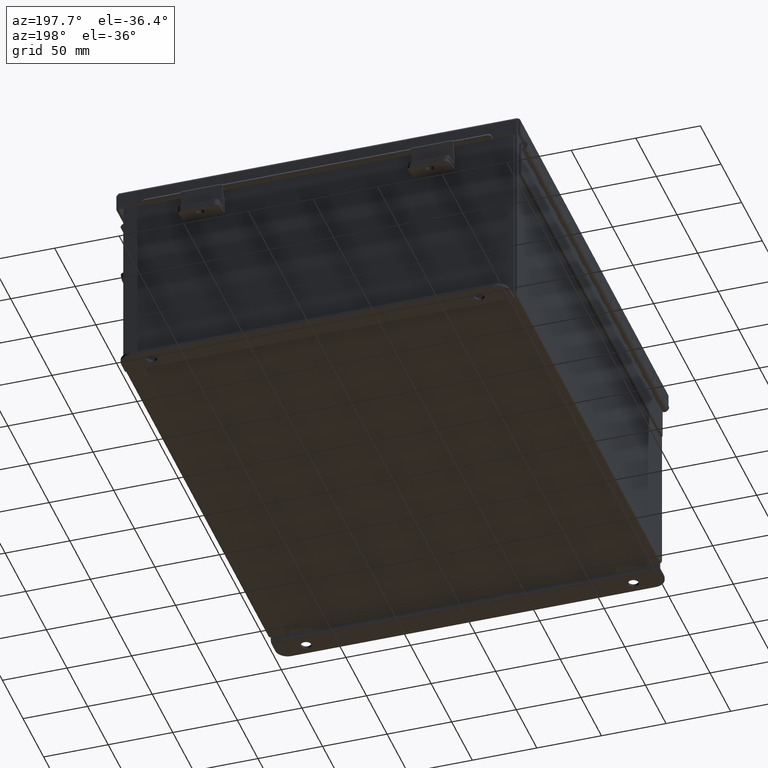
[diagram: clean part render]
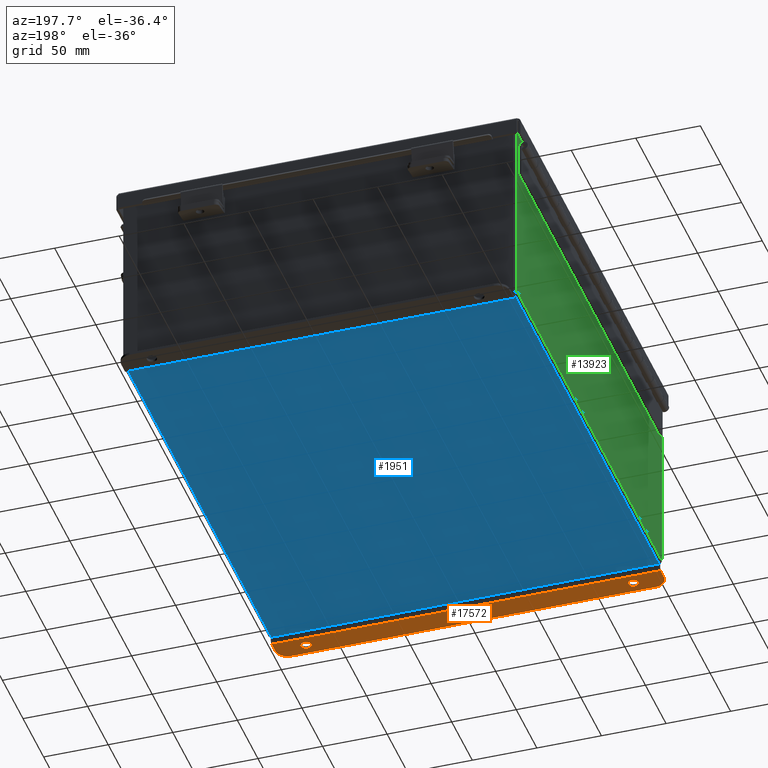
[diagram: same view with three faces highlighted in distinct colors, each labeled with its STEP entity id]
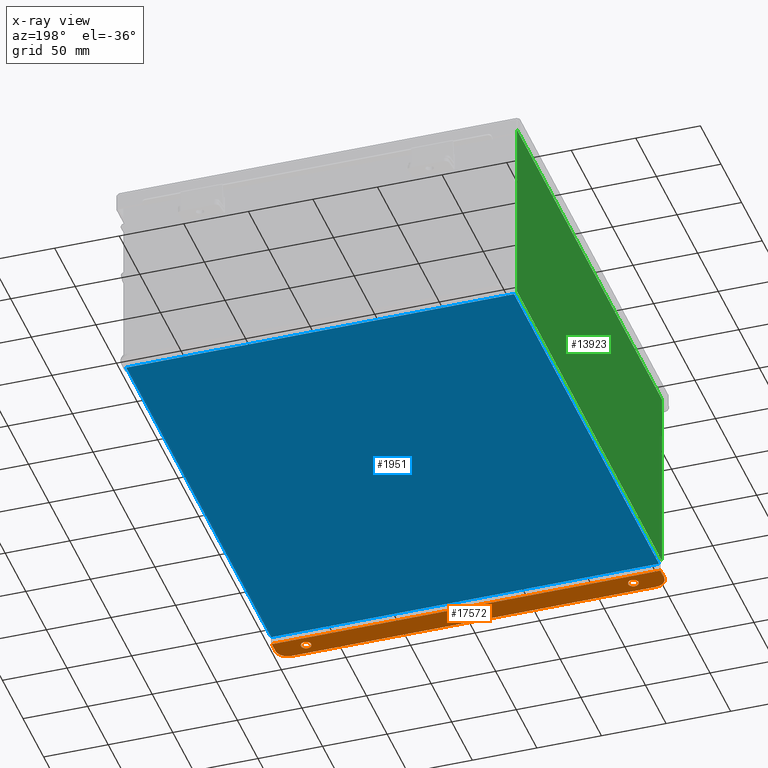
[diagram: x-ray of the same camera — body ghosted, the three highlighted faces saturated]
A machine part, auxiliary view with three faces highlighted in distinct colors.
The next image is the same camera in x-ray (body ghosted, the three faces saturated) — at least one of them is partly hidden behind the body in this view.
Their STEP definitions:

[orange] entity #17572 — the highlighted planar face has unit normal (0, -0, 1).
#5 = LINE ( 'NONE', #12076, #15134 ) ;
#116 = DIRECTION ( 'NONE',  ( 0.0000000000000000000, -3.362274453740631800E-015, -1.000000000000000000 ) ) ;
#735 = ORIENTED_EDGE ( 'NONE', *, *, #2934, .F. ) ;
#811 = VECTOR ( 'NONE', #9497, 39.37007874015748100 ) ;
#826 = VERTEX_POINT ( 'NONE', #4437 ) ;
#1617 = VERTEX_POINT ( 'NONE', #15578 ) ;
#1905 = FACE_BOUND ( 'NONE', #17644, .T. ) ;
#2155 = AXIS2_PLACEMENT_3D ( 'NONE', #6926, #17138, #8424 ) ;
#2340 = CARTESIAN_POINT ( 'NONE',  ( -4.987800000000000900, 0.5187999999999999300, -3.187000000000001600 ) ) ;
#2784 = VERTEX_POINT ( 'NONE', #2340 ) ;
#2934 = EDGE_CURVE ( 'NONE', #1617, #18196, #18366, .T. ) ;
#3075 = VECTOR ( 'NONE', #11872, 39.37007874015748100 ) ;
#3118 = CARTESIAN_POINT ( 'NONE',  ( -5.925300000000001800, -1.966930555438269700E-014, -3.187000000000000300 ) ) ;
#3223 = CARTESIAN_POINT ( 'NONE',  ( -5.925300000000000000, 0.01299999999999245900, -3.187000000000000300 ) ) ;
#3247 = AXIS2_PLACEMENT_3D ( 'NONE', #15147, #6338, #16585 ) ;
#3630 = EDGE_CURVE ( 'NONE', #2784, #826, #5245, .T. ) ;
#4002 = DIRECTION ( 'NONE',  ( 1.000000000000000000, 4.910036603141682400E-031, -0.0000000000000000000 ) ) ;
#4043 = CARTESIAN_POINT ( 'NONE',  ( 0.0000000000000000000, -1.092739197465705300E-014, -3.187000000000000700 ) ) ;
#4367 = EDGE_CURVE ( 'NONE', #13849, #7773, #5, .T. ) ;
#4437 = CARTESIAN_POINT ( 'NONE',  ( -4.987799999999992000, 0.2067999999999996000, -3.187000000000000700 ) ) ;
#4664 = CARTESIAN_POINT ( 'NONE',  ( 5.550299999999999100, 0.3628000000000008400, -3.187000000000005600 ) ) ;
#4693 = LINE ( 'NONE', #14419, #811 ) ;
#4704 = EDGE_CURVE ( 'NONE', #13695, #7773, #4693, .T. ) ;
#4741 = EDGE_LOOP ( 'NONE', ( #7939, #735 ) ) ;
#5245 = CIRCLE ( 'NONE', #13428, 0.1560000000000001900 ) ;
#5296 = LINE ( 'NONE', #3118, #3075 ) ;
#5570 = CARTESIAN_POINT ( 'NONE',  ( -4.987800000000000900, 0.3627999999999997300, -3.187000000000001200 ) ) ;
#5576 = VERTEX_POINT ( 'NONE', #8764 ) ;
#5675 = DIRECTION ( 'NONE',  ( 0.0000000000000000000, -3.362274453740631800E-015, -1.000000000000000000 ) ) ;
#6120 = DIRECTION ( 'NONE',  ( 0.0000000000000000000, -1.000000000000000000, 4.370956789862820400E-015 ) ) ;
#6338 = DIRECTION ( 'NONE',  ( -0.0000000000000000000, -3.702694488566362300E-015, -1.000000000000000000 ) ) ;
#6508 = ORIENTED_EDGE ( 'NONE', *, *, #9147, .T. ) ;
#6926 = CARTESIAN_POINT ( 'NONE',  ( -4.987800000000000900, 0.3627999999999997300, -3.187000000000001200 ) ) ;
#7193 = AXIS2_PLACEMENT_3D ( 'NONE', #4043, #18713, #9926 ) ;
#7645 = CARTESIAN_POINT ( 'NONE',  ( -5.925300000000001800, 0.3627999999999920700, -3.187000000000005600 ) ) ;
#7742 = ORIENTED_EDGE ( 'NONE', *, *, #12931, .F. ) ;
#7773 = VERTEX_POINT ( 'NONE', #12301 ) ;
#7939 = ORIENTED_EDGE ( 'NONE', *, *, #15363, .F. ) ;
#7957 = VECTOR ( 'NONE', #13454, 39.37007874015748100 ) ;
#8133 = DIRECTION ( 'NONE',  ( 0.0000000000000000000, -3.362274453740631800E-015, -1.000000000000000000 ) ) ;
#8424 = DIRECTION ( 'NONE',  ( 0.0000000000000000000, 1.000000000000000000, -3.502369222646487000E-015 ) ) ;
#8486 = PLANE ( 'NONE',  #7193 ) ;
#8591 = EDGE_CURVE ( 'NONE', #9160, #14994, #11036, .T. ) ;
#8764 = CARTESIAN_POINT ( 'NONE',  ( 5.550299999999999100, 0.7378000000000000100, -3.187000000000002900 ) ) ;
#9026 = CARTESIAN_POINT ( 'NONE',  ( 4.987799999999998200, 0.3627999999999997300, -3.187000000000001200 ) ) ;
#9041 = EDGE_LOOP ( 'NONE', ( #12378, #17148, #15243, #6508, #10767, #16134 ) ) ;
#9147 = EDGE_CURVE ( 'NONE', #5576, #13695, #14463, .T. ) ;
#9160 = VERTEX_POINT ( 'NONE', #7645 ) ;
#9497 = DIRECTION ( 'NONE',  ( -4.919856193148104900E-031, -1.000000000000000000, 3.702694488566362300E-015 ) ) ;
#9926 = DIRECTION ( 'NONE',  ( -4.919856193148104900E-031, -1.000000000000000000, 3.702694488566362300E-015 ) ) ;
#10767 = ORIENTED_EDGE ( 'NONE', *, *, #4704, .T. ) ;
#11036 = CIRCLE ( 'NONE', #3247, 0.3750000000000000600 ) ;
#11138 = ORIENTED_EDGE ( 'NONE', *, *, #3630, .F. ) ;
#11200 = AXIS2_PLACEMENT_3D ( 'NONE', #4664, #14940, #6120 ) ;
#11432 = DIRECTION ( 'NONE',  ( 0.0000000000000000000, 1.000000000000000000, -3.502369222646487000E-015 ) ) ;
#11714 = CARTESIAN_POINT ( 'NONE',  ( 4.987799999999998200, 0.5187999999999999300, -3.187000000000001600 ) ) ;
#11769 = CARTESIAN_POINT ( 'NONE',  ( 5.925299999999999100, 0.3628000000000008400, -3.187000000000001200 ) ) ;
#11872 = DIRECTION ( 'NONE',  ( 4.919856193148104900E-031, 1.000000000000000000, -3.702694488566362300E-015 ) ) ;
#12076 = CARTESIAN_POINT ( 'NONE',  ( 5.925299999999999100, 0.01300000000000120000, -3.187000000000004700 ) ) ;
#12110 = EDGE_CURVE ( 'NONE', #14994, #5576, #12381, .T. ) ;
#12301 = CARTESIAN_POINT ( 'NONE',  ( 5.925299999999999100, 0.01300000000000010700, -3.187000000000004700 ) ) ;
#12378 = ORIENTED_EDGE ( 'NONE', *, *, #17295, .T. ) ;
#12381 = LINE ( 'NONE', #16334, #7957 ) ;
#12931 = EDGE_CURVE ( 'NONE', #826, #2784, #14916, .T. ) ;
#13428 = AXIS2_PLACEMENT_3D ( 'NONE', #5570, #116, #11432 ) ;
#13454 = DIRECTION ( 'NONE',  ( 1.000000000000000000, 4.910036603141682400E-031, 0.0000000000000000000 ) ) ;
#13468 = CARTESIAN_POINT ( 'NONE',  ( -5.550299999999999100, 0.7377999999999912400, -3.187000000000002900 ) ) ;
#13569 = FACE_OUTER_BOUND ( 'NONE', #9041, .T. ) ;
#13695 = VERTEX_POINT ( 'NONE', #11769 ) ;
#13849 = VERTEX_POINT ( 'NONE', #3223 ) ;
#14419 = CARTESIAN_POINT ( 'NONE',  ( 5.925299999999999100, -1.092739197465705300E-014, -3.187000000000004700 ) ) ;
#14463 = CIRCLE ( 'NONE', #11200, 0.3750000000000000600 ) ;
#14477 = CARTESIAN_POINT ( 'NONE',  ( 4.987799999999998200, 0.3627999999999997300, -3.187000000000001200 ) ) ;
#14558 = CIRCLE ( 'NONE', #17232, 0.1560000000000001900 ) ;
#14916 = CIRCLE ( 'NONE', #2155, 0.1560000000000001900 ) ;
#14940 = DIRECTION ( 'NONE',  ( -0.0000000000000000000, -3.702694488566362300E-015, -1.000000000000000000 ) ) ;
#14994 = VERTEX_POINT ( 'NONE', #13468 ) ;
#15134 = VECTOR ( 'NONE', #4002, 39.37007874015748100 ) ;
#15147 = CARTESIAN_POINT ( 'NONE',  ( -5.550299999999999100, 0.3627999999999997300, -3.187000000000005600 ) ) ;
#15243 = ORIENTED_EDGE ( 'NONE', *, *, #12110, .T. ) ;
#15363 = EDGE_CURVE ( 'NONE', #18196, #1617, #14558, .T. ) ;
#15578 = CARTESIAN_POINT ( 'NONE',  ( 4.987800000000007100, 0.2067999999999996000, -3.187000000000000700 ) ) ;
#15941 = DIRECTION ( 'NONE',  ( 0.0000000000000000000, 1.000000000000000000, -3.502369222646487000E-015 ) ) ;
#16134 = ORIENTED_EDGE ( 'NONE', *, *, #4367, .F. ) ;
#16334 = CARTESIAN_POINT ( 'NONE',  ( -2.035385365534024800E-024, 0.7378000000000000100, -3.187000000000002900 ) ) ;
#16416 = AXIS2_PLACEMENT_3D ( 'NONE', #9026, #8133, #17545 ) ;
#16585 = DIRECTION ( 'NONE',  ( 0.0000000000000000000, -1.000000000000000000, 4.370956789862820400E-015 ) ) ;
#17138 = DIRECTION ( 'NONE',  ( 0.0000000000000000000, -3.362274453740631800E-015, -1.000000000000000000 ) ) ;
#17148 = ORIENTED_EDGE ( 'NONE', *, *, #8591, .T. ) ;
#17232 = AXIS2_PLACEMENT_3D ( 'NONE', #14477, #5675, #15941 ) ;
#17295 = EDGE_CURVE ( 'NONE', #13849, #9160, #5296, .T. ) ;
#17545 = DIRECTION ( 'NONE',  ( 0.0000000000000000000, 1.000000000000000000, -3.502369222646487000E-015 ) ) ;
#17572 = ADVANCED_FACE ( 'NONE', ( #1905, #18864, #13569 ), #8486, .F. ) ;
#17644 = EDGE_LOOP ( 'NONE', ( #11138, #7742 ) ) ;
#18196 = VERTEX_POINT ( 'NONE', #11714 ) ;
#18366 = CIRCLE ( 'NONE', #16416, 0.1560000000000001900 ) ;
#18713 = DIRECTION ( 'NONE',  ( 0.0000000000000000000, 3.702694488566362300E-015, 1.000000000000000000 ) ) ;
#18864 = FACE_BOUND ( 'NONE', #4741, .T. ) ;

[blue] entity #1951 — the highlighted planar face has unit normal (0, 0, -1).
#191 = CARTESIAN_POINT ( 'NONE',  ( -5.912300000000000100, -6.925300000000000900, -0.07469999999999994700 ) ) ;
#484 = EDGE_CURVE ( 'NONE', #12969, #16737, #8057, .T. ) ;
#1535 = AXIS2_PLACEMENT_3D ( 'NONE', #14392, #17427, #9826 ) ;
#1951 = ADVANCED_FACE ( 'NONE', ( #9232 ), #11512, .T. ) ;
#2103 = ORIENTED_EDGE ( 'NONE', *, *, #6295, .T. ) ;
#2457 = DIRECTION ( 'NONE',  ( -0.0000000000000000000, 1.000000000000000000, -0.0000000000000000000 ) ) ;
#2663 = CARTESIAN_POINT ( 'NONE',  ( -5.912300000000000100, -6.925299999999999100, -0.07469999999999994700 ) ) ;
#3337 = CARTESIAN_POINT ( 'NONE',  ( 5.912300000000000100, 6.925299999999998200, -0.07469999999999994700 ) ) ;
#6004 = CARTESIAN_POINT ( 'NONE',  ( -5.912300000000000100, 6.925299999999998200, -0.07470000000000000300 ) ) ;
#6295 = EDGE_CURVE ( 'NONE', #12969, #15505, #15876, .T. ) ;
#7320 = VERTEX_POINT ( 'NONE', #18324 ) ;
#7652 = VECTOR ( 'NONE', #2457, 39.37007874015748100 ) ;
#7689 = ORIENTED_EDGE ( 'NONE', *, *, #12451, .F. ) ;
#8057 = LINE ( 'NONE', #14578, #11500 ) ;
#8530 = LINE ( 'NONE', #13084, #15836 ) ;
#8580 = DIRECTION ( 'NONE',  ( 1.000000000000000000, 0.0000000000000000000, 0.0000000000000000000 ) ) ;
#9023 = CARTESIAN_POINT ( 'NONE',  ( 5.912300000000000100, -6.925300000000000900, -0.07470000000000000300 ) ) ;
#9232 = FACE_OUTER_BOUND ( 'NONE', #14417, .T. ) ;
#9826 = DIRECTION ( 'NONE',  ( -1.000000000000000000, 0.0000000000000000000, -0.0000000000000000000 ) ) ;
#11500 = VECTOR ( 'NONE', #8580, 39.37007874015748100 ) ;
#11512 = PLANE ( 'NONE',  #1535 ) ;
#12451 = EDGE_CURVE ( 'NONE', #7320, #15505, #8530, .T. ) ;
#12605 = ORIENTED_EDGE ( 'NONE', *, *, #14464, .T. ) ;
#12969 = VERTEX_POINT ( 'NONE', #2663 ) ;
#13084 = CARTESIAN_POINT ( 'NONE',  ( -6.000000000000000900, 6.925299999999998200, -0.07470000000000000300 ) ) ;
#13461 = LINE ( 'NONE', #3337, #16431 ) ;
#14392 = CARTESIAN_POINT ( 'NONE',  ( 0.0000000000000000000, 0.0000000000000000000, -0.07470000000000000300 ) ) ;
#14417 = EDGE_LOOP ( 'NONE', ( #7689, #12605, #18364, #2103 ) ) ;
#14464 = EDGE_CURVE ( 'NONE', #7320, #16737, #13461, .T. ) ;
#14578 = CARTESIAN_POINT ( 'NONE',  ( -6.000000000000000900, -6.925300000000000900, -0.07470000000000000300 ) ) ;
#15505 = VERTEX_POINT ( 'NONE', #6004 ) ;
#15836 = VECTOR ( 'NONE', #15956, 39.37007874015748100 ) ;
#15876 = LINE ( 'NONE', #191, #7652 ) ;
#15956 = DIRECTION ( 'NONE',  ( -1.000000000000000000, -0.0000000000000000000, -0.0000000000000000000 ) ) ;
#16431 = VECTOR ( 'NONE', #16480, 39.37007874015748100 ) ;
#16480 = DIRECTION ( 'NONE',  ( -0.0000000000000000000, -1.000000000000000000, -0.0000000000000000000 ) ) ;
#16737 = VERTEX_POINT ( 'NONE', #9023 ) ;
#17427 = DIRECTION ( 'NONE',  ( 0.0000000000000000000, 0.0000000000000000000, -1.000000000000000000 ) ) ;
#18324 = CARTESIAN_POINT ( 'NONE',  ( 5.912300000000000100, 6.925299999999996500, -0.07469999999999994700 ) ) ;
#18364 = ORIENTED_EDGE ( 'NONE', *, *, #484, .F. ) ;

[green] entity #13923 — the highlighted planar face has unit normal (1, 0, 0).
#164 = DIRECTION ( 'NONE',  ( 3.548703509357741800E-015, 0.0000000000000000000, -1.000000000000000000 ) ) ;
#183 = CARTESIAN_POINT ( 'NONE',  ( -6.000000000000021300, 6.925299999999998200, 5.837599999999999200 ) ) ;
#598 = ORIENTED_EDGE ( 'NONE', *, *, #17863, .T. ) ;
#715 = EDGE_CURVE ( 'NONE', #15709, #14021, #9014, .T. ) ;
#1592 = LINE ( 'NONE', #11023, #15103 ) ;
#1807 = FACE_OUTER_BOUND ( 'NONE', #18825, .T. ) ;
#2003 = DIRECTION ( 'NONE',  ( 3.548703509357741000E-015, 0.0000000000000000000, -1.000000000000000000 ) ) ;
#2186 = CARTESIAN_POINT ( 'NONE',  ( -6.000000000000000900, 6.925299999999998200, 0.01299999999999984300 ) ) ;
#2695 = CARTESIAN_POINT ( 'NONE',  ( -6.000000000000000900, 6.925299999999998200, 0.01299999999999984300 ) ) ;
#5841 = DIRECTION ( 'NONE',  ( -0.0000000000000000000, 1.000000000000000000, -0.0000000000000000000 ) ) ;
#6606 = ORIENTED_EDGE ( 'NONE', *, *, #715, .F. ) ;
#7169 = VECTOR ( 'NONE', #7823, 39.37007874015748100 ) ;
#7823 = DIRECTION ( 'NONE',  ( -3.548703509357741800E-015, 3.735477378271307500E-016, 1.000000000000000000 ) ) ;
#8412 = EDGE_CURVE ( 'NONE', #10219, #14021, #11240, .T. ) ;
#9014 = LINE ( 'NONE', #2695, #17235 ) ;
#9281 = CARTESIAN_POINT ( 'NONE',  ( -6.000000000000000900, 0.0000000000000000000, -2.155598807500707700E-014 ) ) ;
#10219 = VERTEX_POINT ( 'NONE', #183 ) ;
#10337 = CARTESIAN_POINT ( 'NONE',  ( -6.000000000000000900, 6.925299999999998200, -2.155598807500707700E-014 ) ) ;
#10709 = CARTESIAN_POINT ( 'NONE',  ( -6.000000000000000900, -6.925300000000000900, -1.896926950600622800E-014 ) ) ;
#10769 = DIRECTION ( 'NONE',  ( 1.000000000000000000, 0.0000000000000000000, 3.548703509357741000E-015 ) ) ;
#11023 = CARTESIAN_POINT ( 'NONE',  ( -6.000000000000021300, -6.925299999999998200, 5.837599999999999200 ) ) ;
#11034 = LINE ( 'NONE', #10709, #7169 ) ;
#11087 = EDGE_CURVE ( 'NONE', #14874, #10219, #1592, .T. ) ;
#11240 = LINE ( 'NONE', #10337, #17645 ) ;
#13236 = AXIS2_PLACEMENT_3D ( 'NONE', #9281, #10769, #2003 ) ;
#13923 = ADVANCED_FACE ( 'NONE', ( #1807 ), #18069, .F. ) ;
#14021 = VERTEX_POINT ( 'NONE', #2186 ) ;
#14874 = VERTEX_POINT ( 'NONE', #17573 ) ;
#15103 = VECTOR ( 'NONE', #16890, 39.37007874015748100 ) ;
#15709 = VERTEX_POINT ( 'NONE', #18182 ) ;
#16546 = ORIENTED_EDGE ( 'NONE', *, *, #11087, .T. ) ;
#16890 = DIRECTION ( 'NONE',  ( 0.0000000000000000000, 1.000000000000000000, 0.0000000000000000000 ) ) ;
#17235 = VECTOR ( 'NONE', #5841, 39.37007874015748100 ) ;
#17573 = CARTESIAN_POINT ( 'NONE',  ( -6.000000000000021300, -6.925299999999997300, 5.837599999999999200 ) ) ;
#17645 = VECTOR ( 'NONE', #164, 39.37007874015748100 ) ;
#17863 = EDGE_CURVE ( 'NONE', #15709, #14874, #11034, .T. ) ;
#18069 = PLANE ( 'NONE',  #13236 ) ;
#18182 = CARTESIAN_POINT ( 'NONE',  ( -6.000000000000000900, -6.925299999999999100, 0.01299999999999984300 ) ) ;
#18825 = EDGE_LOOP ( 'NONE', ( #16546, #18933, #6606, #598 ) ) ;
#18933 = ORIENTED_EDGE ( 'NONE', *, *, #8412, .T. ) ;